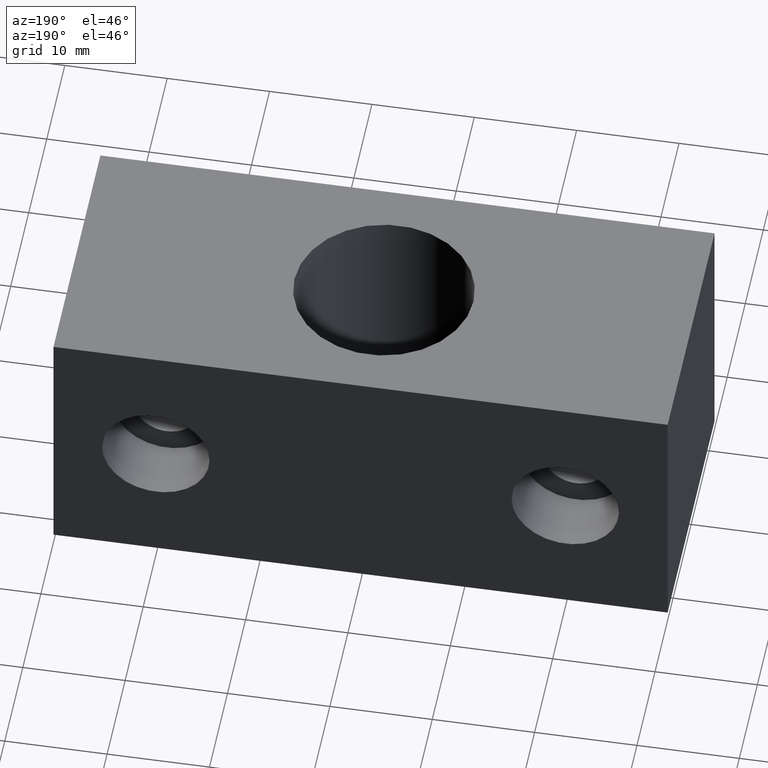
[diagram: clean part render]
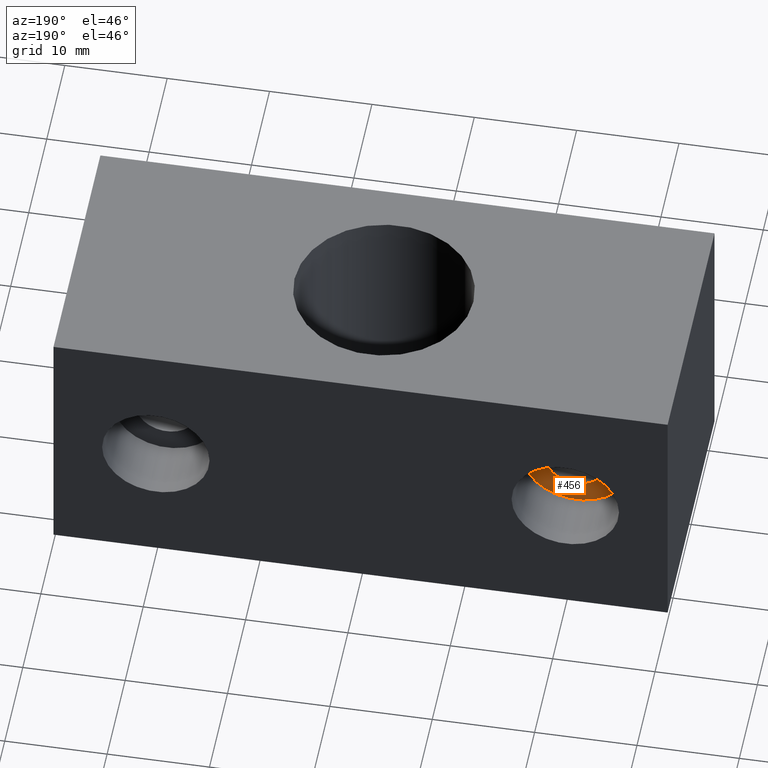
[diagram: same view with one face highlighted and labeled with its STEP entity id]
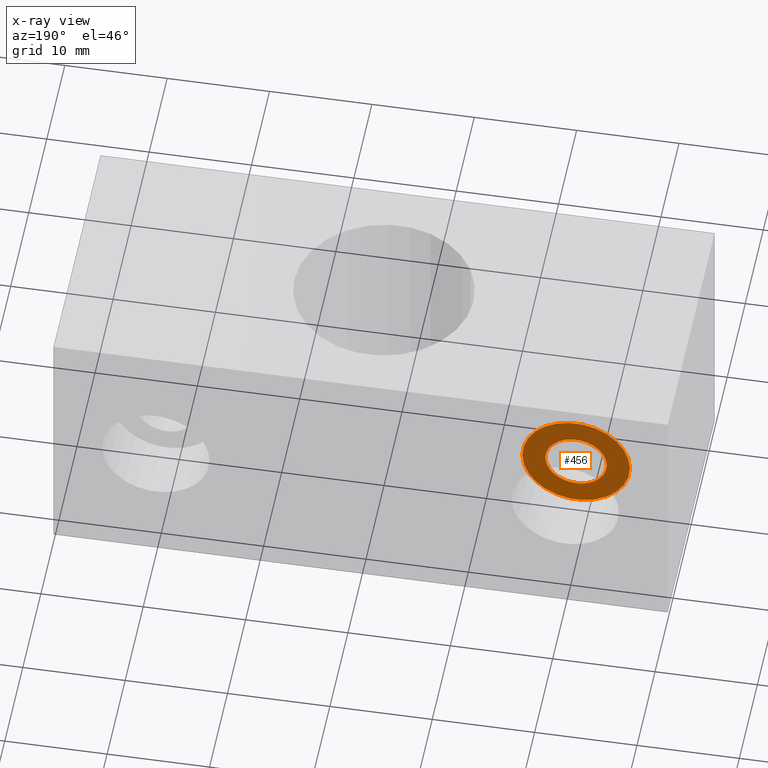
[diagram: x-ray of the same camera — body ghosted, the highlighted face saturated]
A machine part, auxiliary view. The second image highlights one B-rep face of the part: STEP entity #456.
The next image is the same camera in x-ray: the body ghosted, the highlighted face saturated — about 70% of this face is hidden behind the body in this view.
In plain terms, the highlighted planar face has unit normal (0, 1, 0).
Its self-contained STEP definition (entity closure, byte-faithful):
#296=CARTESIAN_POINT('',(-16.999999999999886,7.000004422703000,0.0));
#297=VERTEX_POINT('',#296);
#304=CARTESIAN_POINT('',(-22.999999999999876,7.000004422703000,0.0));
#305=VERTEX_POINT('',#304);
#306=CARTESIAN_POINT('',(-19.999999999999886,7.000004422703000,0.0));
#307=DIRECTION('',(0.0,1.0,6.123234E-017));
#308=DIRECTION('',(1.0,0.0,0.0));
#309=AXIS2_PLACEMENT_3D('',#306,#307,#308);
#310=CIRCLE('',#309,2.999999999999988);
#311=EDGE_CURVE('',#297,#305,#310,.T.);
#313=CARTESIAN_POINT('',(-19.999999999999886,7.000004422703000,0.0));
#314=DIRECTION('',(0.0,1.0,6.123234E-017));
#315=DIRECTION('',(1.0,0.0,0.0));
#316=AXIS2_PLACEMENT_3D('',#313,#314,#315);
#317=CIRCLE('',#316,2.999999999999988);
#318=EDGE_CURVE('',#305,#297,#317,.T.);
#413=CARTESIAN_POINT('',(-25.249999999999886,7.000004422703000,0.0));
#414=VERTEX_POINT('',#413);
#415=CARTESIAN_POINT('',(-14.749999999999886,7.000004422703000,0.0));
#416=VERTEX_POINT('',#415);
#417=CARTESIAN_POINT('',(-19.999999999999886,7.000004422703000,0.0));
#418=DIRECTION('',(0.0,1.0,6.123234E-017));
#419=DIRECTION('',(1.0,0.0,0.0));
#420=AXIS2_PLACEMENT_3D('',#417,#418,#419);
#421=CIRCLE('',#420,5.250000000000000);
#422=EDGE_CURVE('',#414,#416,#421,.T.);
#424=CARTESIAN_POINT('',(-19.999999999999886,7.000004422703000,0.0));
#425=DIRECTION('',(0.0,1.0,6.123234E-017));
#426=DIRECTION('',(1.0,0.0,0.0));
#427=AXIS2_PLACEMENT_3D('',#424,#425,#426);
#428=CIRCLE('',#427,5.250000000000000);
#429=EDGE_CURVE('',#416,#414,#428,.T.);
#443=CARTESIAN_POINT('',(-13.699879999958625,7.000004422703000,-6.300120000066912));
#444=DIRECTION('',(0.0,1.0,0.0));
#445=DIRECTION('',(-1.0,0.0,0.0));
#446=AXIS2_PLACEMENT_3D('',#443,#444,#445);
#447=PLANE('',#446);
#448=ORIENTED_EDGE('',*,*,#429,.T.);
#449=ORIENTED_EDGE('',*,*,#422,.T.);
#450=EDGE_LOOP('',(#448,#449));
#451=FACE_OUTER_BOUND('',#450,.T.);
#452=ORIENTED_EDGE('',*,*,#318,.F.);
#453=ORIENTED_EDGE('',*,*,#311,.F.);
#454=EDGE_LOOP('',(#452,#453));
#455=FACE_BOUND('',#454,.T.);
#456=ADVANCED_FACE('',(#451,#455),#447,.T.);